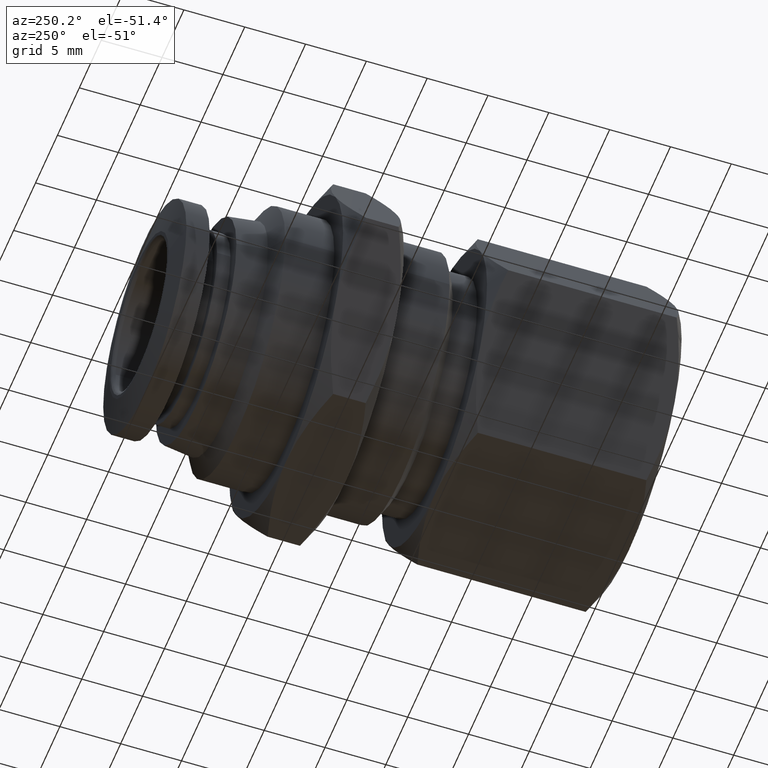
[diagram: clean part render]
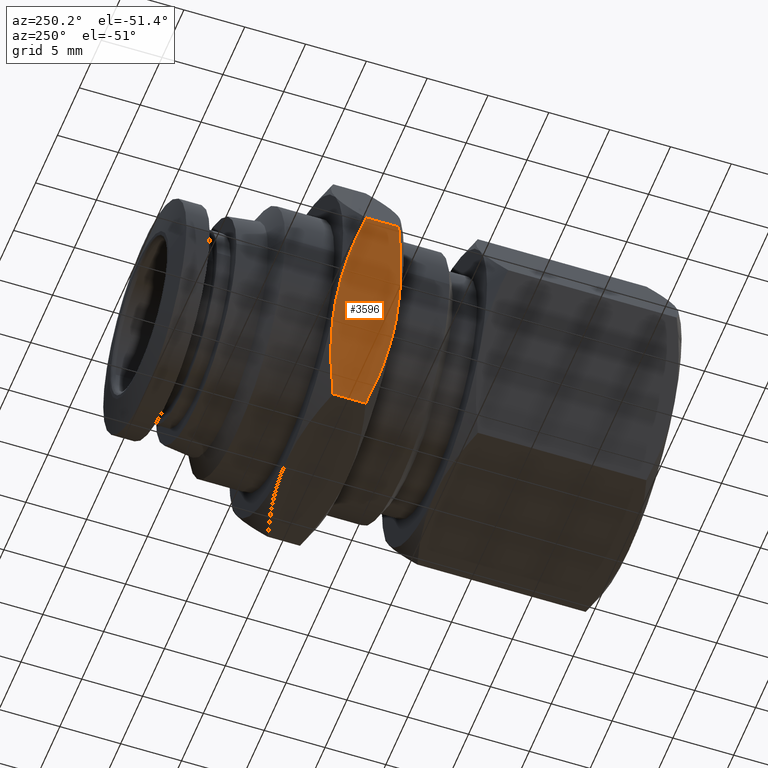
[diagram: same view with one face highlighted and labeled with its STEP entity id]
A machine part, auxiliary view. The second image highlights one B-rep face of the part: STEP entity #3596.
In plain terms, the highlighted planar face has unit normal (-0.866, 0, -0.5).
Its self-contained STEP definition (entity closure, byte-faithful):
#41 = EDGE_CURVE ( 'NONE', #2008, #2645, #3160, .T. ) ;
#144 = CARTESIAN_POINT ( 'NONE',  ( -0.3196302029602199300, 0.4483138225442977500, -0.4700062960830299600 ) ) ;
#187 = CARTESIAN_POINT ( 'NONE',  ( -0.3931517074259314200, 0.2876118668023995300, -0.3426633148995976200 ) ) ;
#298 = CARTESIAN_POINT ( 'NONE',  ( -0.2954942322622129400, 0.4800920302087053900, -0.5118110236219555200 ) ) ;
#395 = B_SPLINE_CURVE_WITH_KNOTS ( 'NONE', 3,
 ( #1632, #1047, #3644, #491, #562, #2553 ),
 .UNSPECIFIED., .F., .F.,
 ( 4, 2, 4 ),
 ( 0.0000000000000000000, 0.003797417434262415500, 0.007594834868524829300 ),
 .UNSPECIFIED. ) ;
#486 = CARTESIAN_POINT ( 'NONE',  ( -0.3196302024841217700, 0.3150198444100615300, -0.4700062969077245000 ) ) ;
#491 = CARTESIAN_POINT ( 'NONE',  ( -0.4933309890601907400, 0.2876118667491030500, -0.1691477092433082400 ) ) ;
#562 = CARTESIAN_POINT ( 'NONE',  ( -0.4684551879739435900, 0.2832416364448825400, -0.2122338606036677500 ) ) ;
#573 = EDGE_CURVE ( 'NONE', #2695, #3442, #2085, .T. ) ;
#586 = PLANE ( 'NONE',  #2064 ) ;
#595 = FACE_OUTER_BOUND ( 'NONE', #3038, .T. ) ;
#605 = DIRECTION ( 'NONE',  ( -0.4999999999999990000, 0.0000000000000000000, 0.8660254037844391500 ) ) ;
#645 = EDGE_CURVE ( 'NONE', #1401, #2695, #3548, .T. ) ;
#698 = ORIENTED_EDGE ( 'NONE', *, *, #573, .T. ) ;
#738 = CARTESIAN_POINT ( 'NONE',  ( -0.4432413484052327200, 0.4800920302640635000, -0.2559055118178148500 ) ) ;
#893 = DIRECTION ( 'NONE',  ( 0.0000000000000000000, 1.000000000000000000, 0.0000000000000000000 ) ) ;
#923 = VECTOR ( 'NONE', #893, 39.37007874015748100 ) ;
#949 = CARTESIAN_POINT ( 'NONE',  ( -0.2954942322622388700, 0.4800920302086180700, -0.5118110236219559600 ) ) ;
#1047 = CARTESIAN_POINT ( 'NONE',  ( -0.5668524927016007600, 0.3150198443891050700, -0.04180472803384620300 ) ) ;
#1069 = ORIENTED_EDGE ( 'NONE', *, *, #2525, .F. ) ;
#1080 = CARTESIAN_POINT ( 'NONE',  ( -0.4180275086558166700, 0.2832416364487502200, -0.2995771632767799700 ) ) ;
#1296 = CARTESIAN_POINT ( 'NONE',  ( -0.5909884642580138800, 0.3289547532362505100, 4.617439262535791000E-010 ) ) ;
#1300 = VERTEX_POINT ( 'NONE', #2356 ) ;
#1311 = CARTESIAN_POINT ( 'NONE',  ( -0.4432413484052327200, 0.4800920302640635000, -0.2559055118178148500 ) ) ;
#1323 = CARTESIAN_POINT ( 'NONE',  ( -0.4684551880660363700, 0.4800920302719013400, -0.2122338604440573400 ) ) ;
#1329 = VECTOR ( 'NONE', #2587, 39.37007874015748100 ) ;
#1337 = CARTESIAN_POINT ( 'NONE',  ( -0.2954942319384724100, 0.3289547535770126500, -0.5118110241827520400 ) ) ;
#1350 = ORIENTED_EDGE ( 'NONE', *, *, #645, .T. ) ;
#1401 = VERTEX_POINT ( 'NONE', #1296 ) ;
#1426 = CARTESIAN_POINT ( 'NONE',  ( -0.4432413484052327200, 0.4800920302640635000, -0.2559055118178148500 ) ) ;
#1474 = CARTESIAN_POINT ( 'NONE',  ( -0.5425275891306897700, 0.4598061545527256700, -0.08393669836146901200 ) ) ;
#1486 = ORIENTED_EDGE ( 'NONE', *, *, #3373, .F. ) ;
#1535 = CARTESIAN_POINT ( 'NONE',  ( -0.5909884645203731200, 0.4343789133291898800, 7.283830291587022900E-012 ) ) ;
#1550 = CARTESIAN_POINT ( 'NONE',  ( -0.5668524938367212100, 0.4483138225517567800, -0.04180472754470671000 ) ) ;
#1632 = CARTESIAN_POINT ( 'NONE',  ( -0.5909884642580138800, 0.3289547532362505100, 4.617439262535791000E-010 ) ) ;
#1813 = CARTESIAN_POINT ( 'NONE',  ( -0.2954942322664384500, 0.4343789133291000600, -0.5118110236146711200 ) ) ;
#1913 = CARTESIAN_POINT ( 'NONE',  ( -0.3439551076556538500, 0.4598061545524871900, -0.4278743252612616800 ) ) ;
#2008 = VERTEX_POINT ( 'NONE', #1337 ) ;
#2064 = AXIS2_PLACEMENT_3D ( 'NONE', #298, #2327, #605 ) ;
#2085 = B_SPLINE_CURVE_WITH_KNOTS ( 'NONE', 3,
 ( #1535, #1550, #1474, #3119, #1323, #1311 ),
 .UNSPECIFIED., .F., .F.,
 ( 4, 2, 4 ),
 ( 0.0000000000000000000, 0.003797417448773442400, 0.007594834897546884900 ),
 .UNSPECIFIED. ) ;
#2190 = CARTESIAN_POINT ( 'NONE',  ( -0.2954942322664384500, 0.4343789133291000600, -0.5118110236146711200 ) ) ;
#2224 = CARTESIAN_POINT ( 'NONE',  ( -0.3439551074295796300, 0.3035275122542197000, -0.4278743256529136700 ) ) ;
#2327 = DIRECTION ( 'NONE',  ( -0.8660254037844392600, 2.559944000000001200E-013, -0.4999999999999990600 ) ) ;
#2356 = CARTESIAN_POINT ( 'NONE',  ( -0.4432413484053008800, 0.2832416364527123900, -0.2559055118178211200 ) ) ;
#2487 = CARTESIAN_POINT ( 'NONE',  ( -0.2954942319384724100, 0.3289547535770126500, -0.5118110241827520400 ) ) ;
#2525 = EDGE_CURVE ( 'NONE', #1401, #1300, #395, .T. ) ;
#2553 = CARTESIAN_POINT ( 'NONE',  ( -0.4432413484053008800, 0.2832416364527123900, -0.2559055118178211200 ) ) ;
#2587 = DIRECTION ( 'NONE',  ( 2.216976536265553000E-013, 1.000000000000000000, 1.279971999999997800E-013 ) ) ;
#2645 = VERTEX_POINT ( 'NONE', #1813 ) ;
#2695 = VERTEX_POINT ( 'NONE', #3478 ) ;
#2881 = CARTESIAN_POINT ( 'NONE',  ( -0.5909884645245681000, 0.4800920302087053900, 3.414809992080329100E-015 ) ) ;
#3038 = EDGE_LOOP ( 'NONE', ( #1069, #1350, #698, #3045, #3389, #1486 ) ) ;
#3041 = CARTESIAN_POINT ( 'NONE',  ( -0.4432413484053008800, 0.2832416364527123900, -0.2559055118178211200 ) ) ;
#3045 = ORIENTED_EDGE ( 'NONE', *, *, #3301, .T. ) ;
#3119 = CARTESIAN_POINT ( 'NONE',  ( -0.4933309892443341600, 0.4757217999352437200, -0.1691477089242662000 ) ) ;
#3138 = B_SPLINE_CURVE_WITH_KNOTS ( 'NONE', 3,
 ( #3041, #1080, #187, #2224, #486, #2487 ),
 .UNSPECIFIED., .F., .F.,
 ( 4, 2, 4 ),
 ( 1.535976626208396000E-014, 0.003797417457488157100, 0.007594834914960955100 ),
 .UNSPECIFIED. ) ;
#3160 = LINE ( 'NONE', #949, #923 ) ;
#3301 = EDGE_CURVE ( 'NONE', #3442, #2645, #3336, .T. ) ;
#3336 = B_SPLINE_CURVE_WITH_KNOTS ( 'NONE', 3,
 ( #738, #3558, #3568, #1913, #144, #2190 ),
 .UNSPECIFIED., .F., .F.,
 ( 4, 2, 4 ),
 ( 1.531588968076520700E-014, 0.003797417448803870800, 0.007594834897592425700 ),
 .UNSPECIFIED. ) ;
#3373 = EDGE_CURVE ( 'NONE', #1300, #2008, #3138, .T. ) ;
#3389 = ORIENTED_EDGE ( 'NONE', *, *, #41, .F. ) ;
#3442 = VERTEX_POINT ( 'NONE', #1426 ) ;
#3478 = CARTESIAN_POINT ( 'NONE',  ( -0.5909884645203731200, 0.4343789133291898800, 7.283830291587022900E-012 ) ) ;
#3548 = LINE ( 'NONE', #2881, #1329 ) ;
#3558 = CARTESIAN_POINT ( 'NONE',  ( -0.4180275087152367500, 0.4800920302680006200, -0.2995771631737496100 ) ) ;
#3568 = CARTESIAN_POINT ( 'NONE',  ( -0.3931517075421866500, 0.4757217999351643400, -0.3426633146981414300 ) ) ;
#3596 = ADVANCED_FACE ( 'NONE', ( #595 ), #586, .T. ) ;
#3644 = CARTESIAN_POINT ( 'NONE',  ( -0.5425275887622709200, 0.3035275120178015400, -0.08393669899966931000 ) ) ;